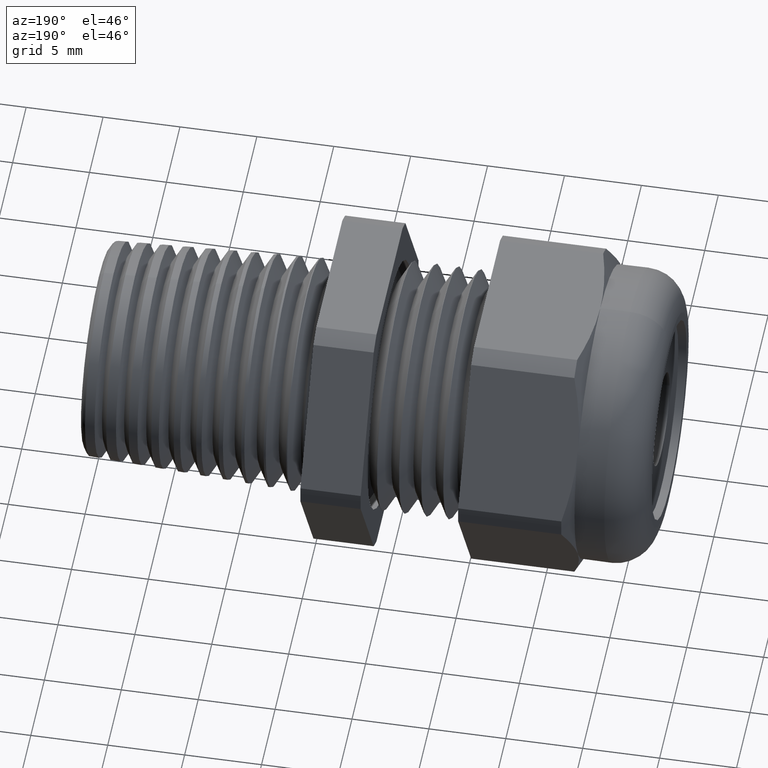
[diagram: clean part render]
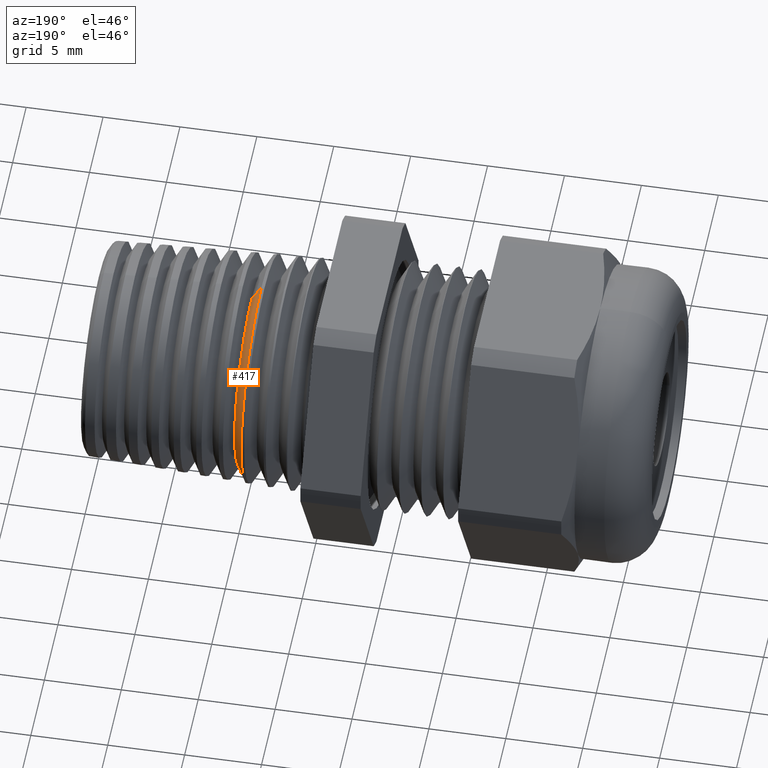
[diagram: same view with one face highlighted and labeled with its STEP entity id]
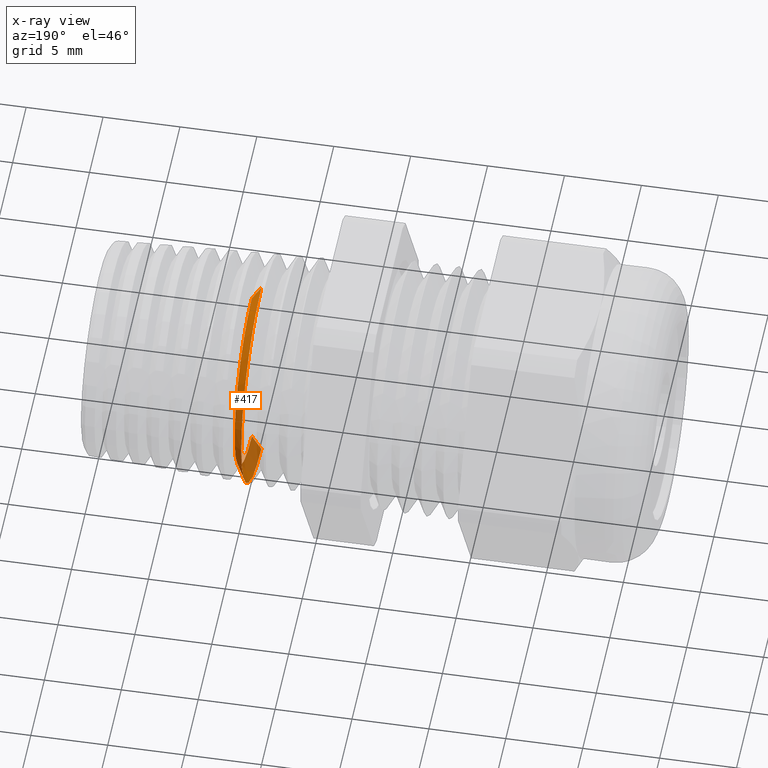
[diagram: x-ray of the same camera — body ghosted, the highlighted face saturated]
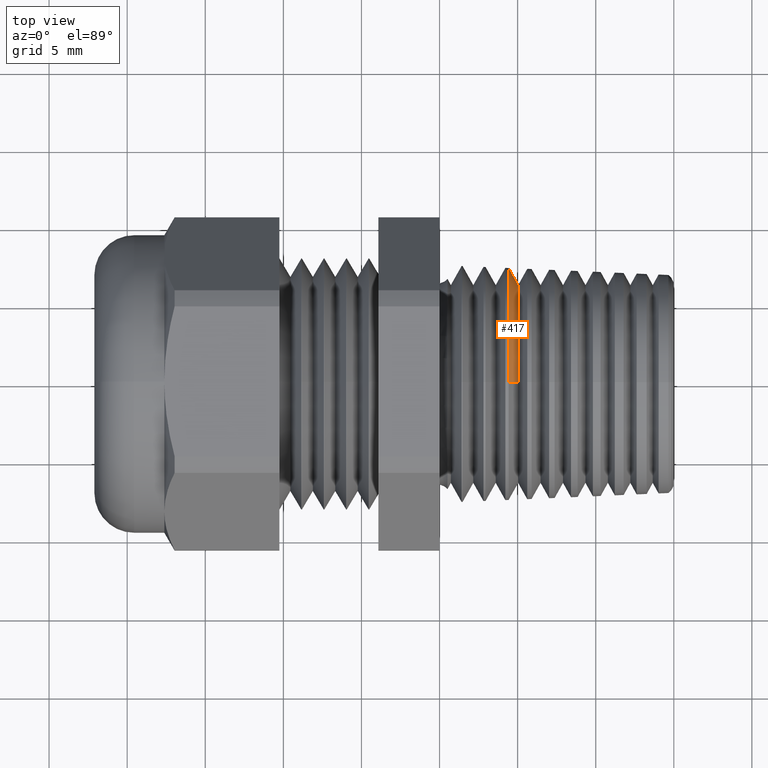
[diagram: same view with one face highlighted and labeled with its STEP entity id]
A machine part, auxiliary view. The second image highlights one B-rep face of the part: STEP entity #417.
The next image is the same camera in x-ray: the body ghosted, the highlighted face saturated — about 22% of this face is hidden behind the body in this view.
A second angle (top view) of the same face is appended — the face is thin or edge-on in the first view.
In plain terms, the highlighted conical surface has half-angle 60 deg.
Its self-contained STEP definition (entity closure, byte-faithful):
#383 = VERTEX_POINT ( 'NONE', #2854 ) ;
#385 = VERTEX_POINT ( 'NONE', #2838 ) ;
#386 = VERTEX_POINT ( 'NONE', #2844 ) ;
#390 = EDGE_LOOP ( 'NONE', ( #413, #395, #392, #394 ) ) ;
#392 = ORIENTED_EDGE ( 'NONE', *, *, #393, .T. ) ;
#393 = EDGE_CURVE ( 'NONE', #385, #386, #2840, .T. ) ;
#394 = ORIENTED_EDGE ( 'NONE', *, *, #411, .F. ) ;
#395 = ORIENTED_EDGE ( 'NONE', *, *, #409, .T. ) ;
#398 = VERTEX_POINT ( 'NONE', #2859 ) ;
#402 = EDGE_CURVE ( 'NONE', #383, #398, #2881, .T. ) ;
#409 = EDGE_CURVE ( 'NONE', #398, #385, #2868, .T. ) ;
#411 = EDGE_CURVE ( 'NONE', #383, #386, #2894, .T. ) ;
#413 = ORIENTED_EDGE ( 'NONE', *, *, #402, .T. ) ;
#417 = ADVANCED_FACE ( 'NONE', ( #4021 ), #4017, .T. ) ;
#2838 = CARTESIAN_POINT ( 'NONE',  ( 0.1740541643660211100, 3.582916898967583400E-017, -0.2924006310666264500 ) ) ;
#2840 = CIRCLE ( 'NONE', #2858, 0.2924006310666263900 ) ;
#2844 = CARTESIAN_POINT ( 'NONE',  ( 0.1740541643660211100, 0.0000000000000000000, 0.2924006310666263900 ) ) ;
#2854 = CARTESIAN_POINT ( 'NONE',  ( 0.1981898988140043100, 0.0000000000000000000, 0.2505963127247286000 ) ) ;
#2856 = DIRECTION ( 'NONE',  ( 1.000000000000000000, 0.0000000000000000000, 0.0000000000000000000 ) ) ;
#2857 = CARTESIAN_POINT ( 'NONE',  ( 0.1740541643660211100, 0.0000000000000000000, 0.0000000000000000000 ) ) ;
#2858 = AXIS2_PLACEMENT_3D ( 'NONE', #2857, #2856, #2861 ) ;
#2859 = CARTESIAN_POINT ( 'NONE',  ( 0.1981898988140043100, 3.324787537365128200E-017, -0.2505963127247286000 ) ) ;
#2861 = DIRECTION ( 'NONE',  ( 0.0000000000000000000, 0.0000000000000000000, 1.000000000000000000 ) ) ;
#2868 = LINE ( 'NONE', #2890, #2889 ) ;
#2871 = AXIS2_PLACEMENT_3D ( 'NONE', #2878, #2904, #2880 ) ;
#2878 = CARTESIAN_POINT ( 'NONE',  ( 0.1981898988140043100, 0.0000000000000000000, 0.0000000000000000000 ) ) ;
#2880 = DIRECTION ( 'NONE',  ( 0.0000000000000000000, 0.0000000000000000000, 1.000000000000000000 ) ) ;
#2881 = CIRCLE ( 'NONE', #2871, 0.2505963127247286000 ) ;
#2888 = DIRECTION ( 'NONE',  ( -0.4999999999999947800, 1.060540212046017300E-016, -0.8660254037844417100 ) ) ;
#2889 = VECTOR ( 'NONE', #2888, 39.37007874015748100 ) ;
#2890 = CARTESIAN_POINT ( 'NONE',  ( 0.1696666666666666600, 3.673819061467131400E-017, -0.2999999999999999900 ) ) ;
#2891 = DIRECTION ( 'NONE',  ( -0.4999999999999947800, 0.0000000000000000000, 0.8660254037844417100 ) ) ;
#2892 = VECTOR ( 'NONE', #2891, 39.37007874015748100 ) ;
#2893 = CARTESIAN_POINT ( 'NONE',  ( 0.1696666666666666600, 0.0000000000000000000, 0.2999999999999999900 ) ) ;
#2894 = LINE ( 'NONE', #2893, #2892 ) ;
#2904 = DIRECTION ( 'NONE',  ( -1.000000000000000000, -0.0000000000000000000, -0.0000000000000000000 ) ) ;
#4015 = CARTESIAN_POINT ( 'NONE',  ( 0.1696666666666666600, 0.0000000000000000000, 0.0000000000000000000 ) ) ;
#4016 = AXIS2_PLACEMENT_3D ( 'NONE', #4015, #4024, #4020 ) ;
#4017 = CONICAL_SURFACE ( 'NONE', #4016, 0.2999999999999999900, 1.047197551196603800 ) ;
#4020 = DIRECTION ( 'NONE',  ( 0.0000000000000000000, 0.0000000000000000000, 1.000000000000000000 ) ) ;
#4021 = FACE_OUTER_BOUND ( 'NONE', #390, .T. ) ;
#4024 = DIRECTION ( 'NONE',  ( -1.000000000000000000, -0.0000000000000000000, -0.0000000000000000000 ) ) ;